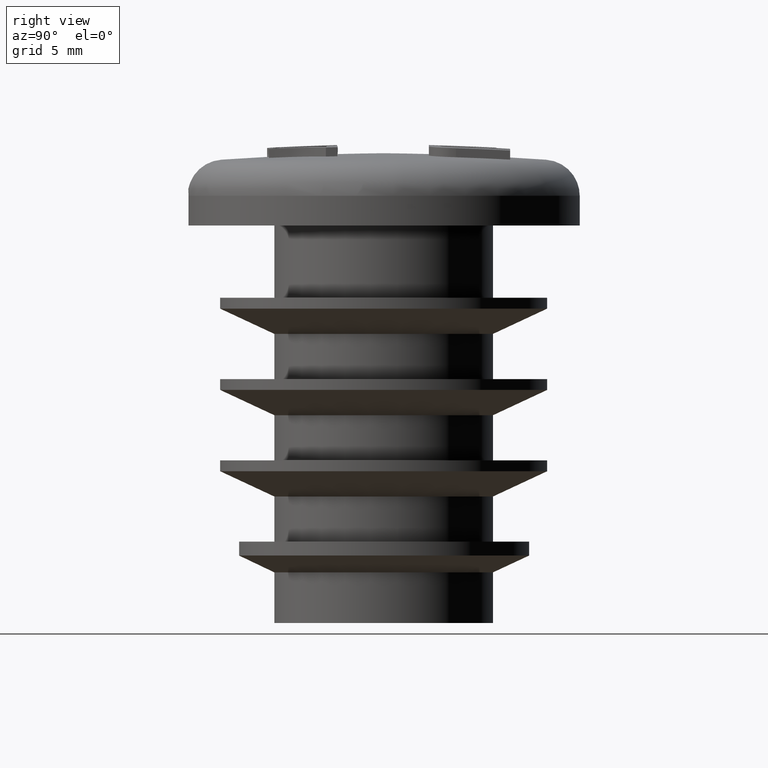
[diagram: clean part render]
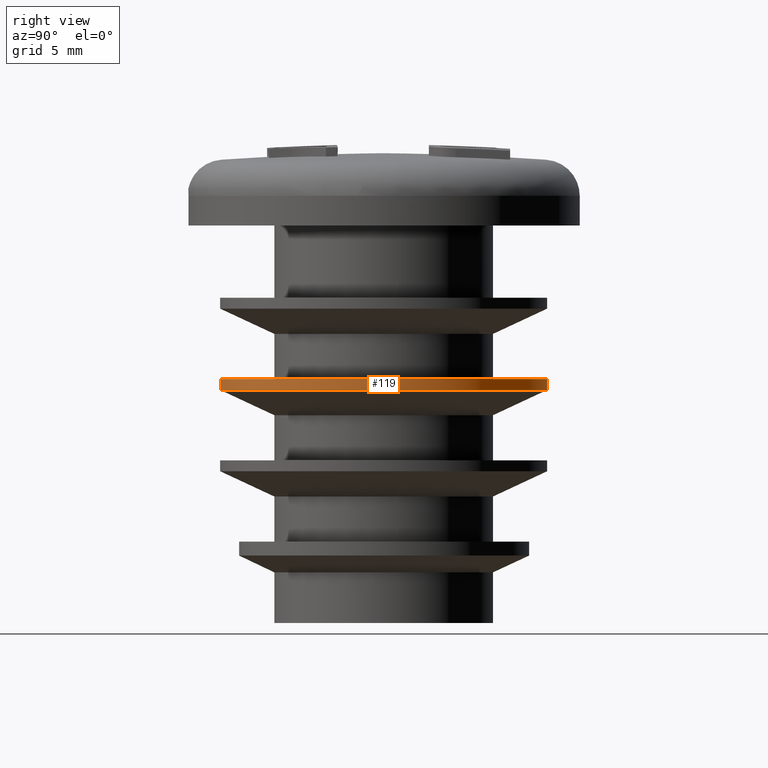
[diagram: same view with one face highlighted and labeled with its STEP entity id]
A machine part, right view. The second image highlights one B-rep face of the part: STEP entity #119.
In plain terms, the highlighted cylindrical surface (bore or boss wall) has radius 9.05 mm, axis along (0, 0, 1).
Its self-contained STEP definition (entity closure, byte-faithful):
#119 = ADVANCED_FACE( '', ( #266, #267 ), #268, .T. );
#266 = FACE_OUTER_BOUND( '', #632, .T. );
#267 = FACE_OUTER_BOUND( '', #633, .T. );
#268 = CYLINDRICAL_SURFACE( '', #634, 9.05000000000000 );
#632 = EDGE_LOOP( '', ( #1124 ) );
#633 = EDGE_LOOP( '', ( #1125 ) );
#634 = AXIS2_PLACEMENT_3D( '', #1126, #1127, #1128 );
#1124 = ORIENTED_EDGE( '', *, *, #1526, .F. );
#1125 = ORIENTED_EDGE( '', *, *, #1525, .T. );
#1126 = CARTESIAN_POINT( '', ( 0.000000000000000, 0.000000000000000, 22.0000000000000 ) );
#1127 = DIRECTION( '', ( 0.000000000000000, 6.12303176911189E-017, 1.00000000000000 ) );
#1128 = DIRECTION( '', ( 0.000000000000000, 1.00000000000000, -6.12303176911189E-017 ) );
#1525 = EDGE_CURVE( '', #1788, #1788, #1789, .T. );
#1526 = EDGE_CURVE( '', #1790, #1790, #1791, .T. );
#1788 = VERTEX_POINT( '', #2596 );
#1789 = CIRCLE( '', #2597, 9.05000000000000 );
#1790 = VERTEX_POINT( '', #2598 );
#1791 = CIRCLE( '', #2599, 9.05000000000000 );
#2596 = CARTESIAN_POINT( '', ( 0.000000000000000, 9.05000000000000, 13.5000000000000 ) );
#2597 = AXIS2_PLACEMENT_3D( '', #2901, #2902, #2903 );
#2598 = CARTESIAN_POINT( '', ( 0.000000000000000, 9.05000000000000, 12.8989229744650 ) );
#2599 = AXIS2_PLACEMENT_3D( '', #2904, #2905, #2906 );
#2901 = CARTESIAN_POINT( '', ( 0.000000000000000, -5.20457700374510E-016, 13.5000000000000 ) );
#2902 = DIRECTION( '', ( 0.000000000000000, -6.12303176911189E-017, -1.00000000000000 ) );
#2903 = DIRECTION( '', ( 0.000000000000000, 1.00000000000000, -6.12303176911189E-017 ) );
#2904 = CARTESIAN_POINT( '', ( 0.000000000000000, -5.57261837604848E-016, 12.8989229744650 ) );
#2905 = DIRECTION( '', ( 0.000000000000000, -6.12303176911189E-017, -1.00000000000000 ) );
#2906 = DIRECTION( '', ( 0.000000000000000, 1.00000000000000, -6.12303176911189E-017 ) );